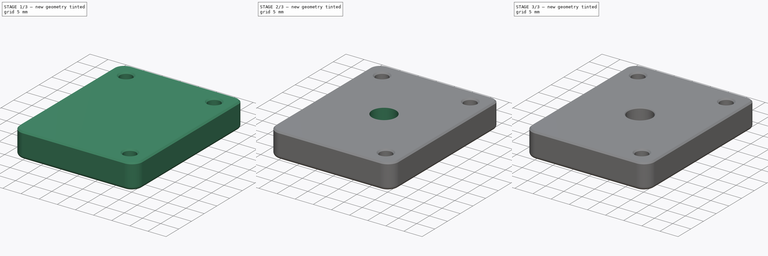
[diagram: build sequence overview — one tinted view per stage of 3, left to right]
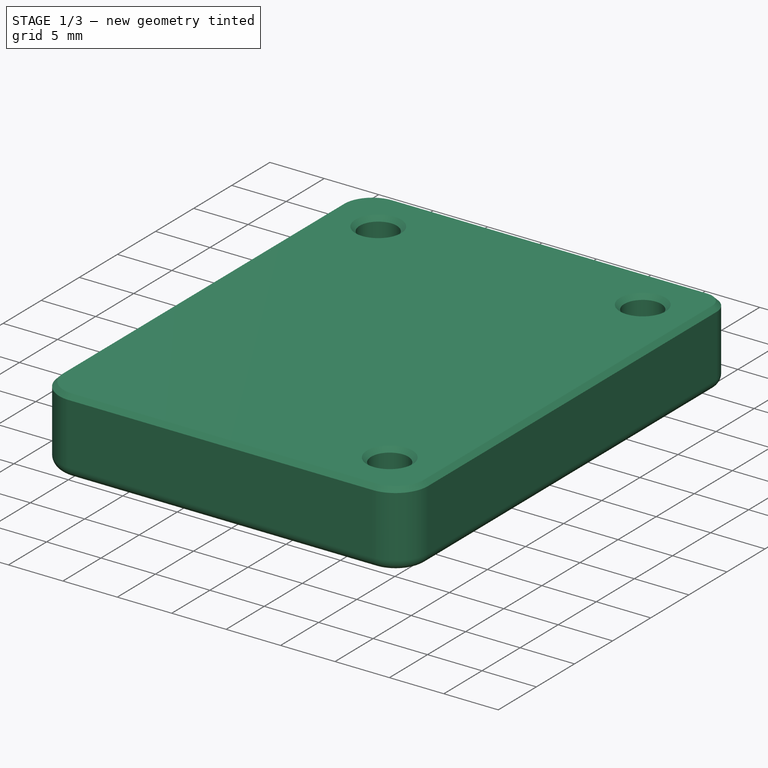
[diagram: stage 1 of 3 — iso view after this stage's code; geometry added in this stage tinted green]
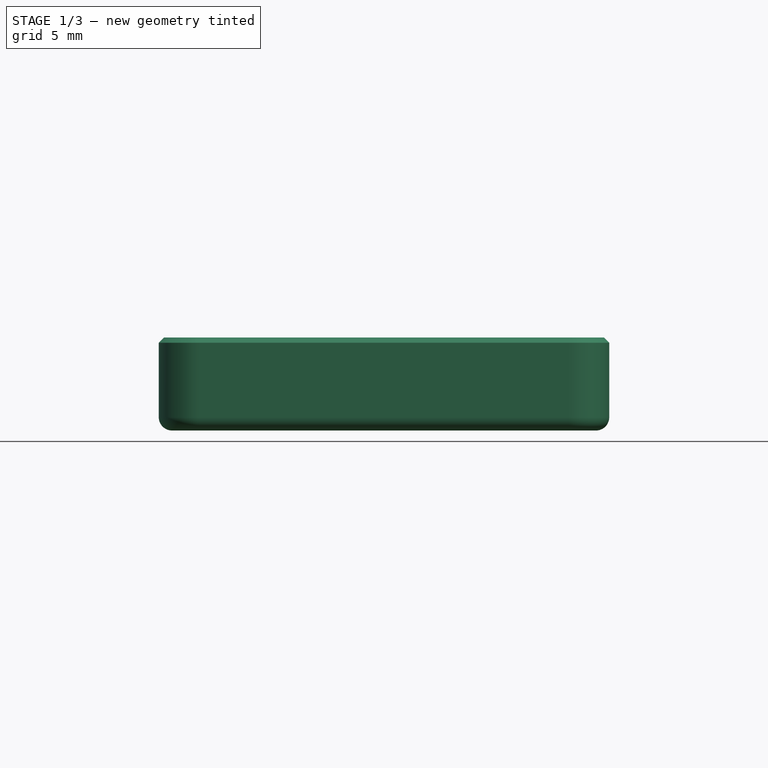
[diagram: stage 1 of 3 — front view after this stage's code; geometry added in this stage tinted green]
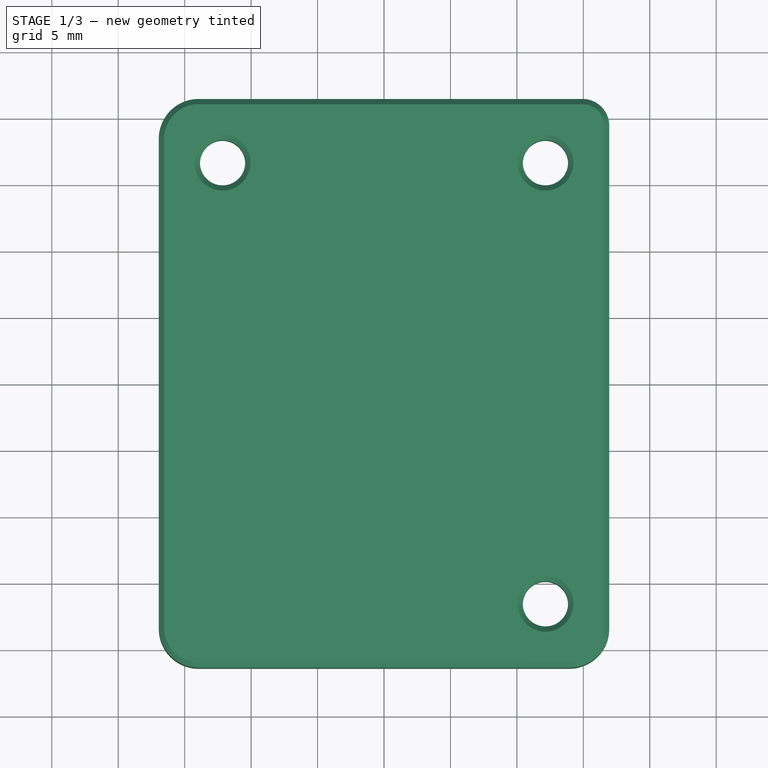
[diagram: stage 1 of 3 — top view after this stage's code; geometry added in this stage tinted green]
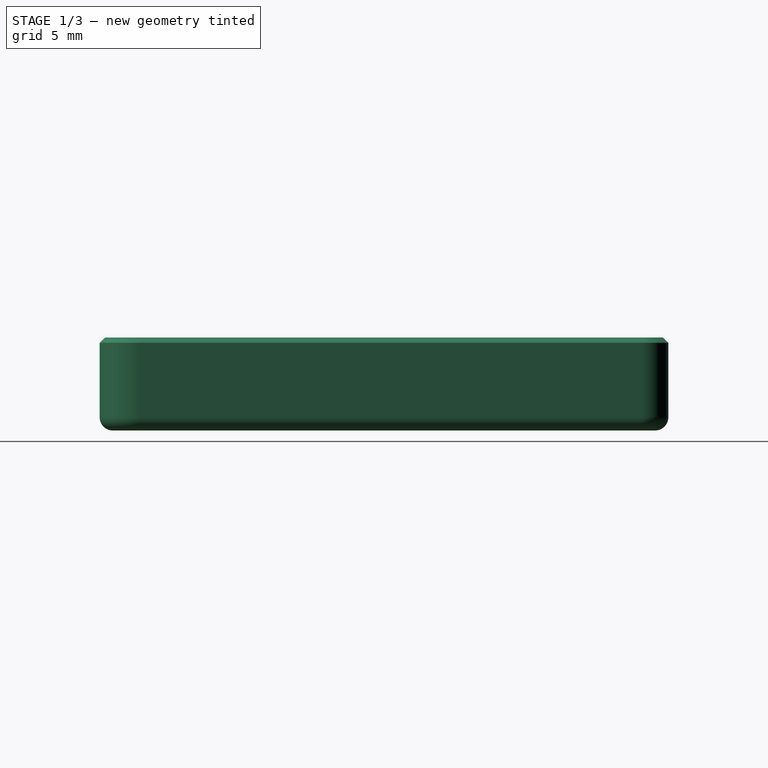
[diagram: stage 1 of 3 — right view after this stage's code; geometry added in this stage tinted green]
FCSTD DOCUMENT  (FreeCAD 0.18R16146 (Git))
Label: foot-mounter
License: Other
LicenseURL: GPL3
objects: Sketcher::SketchObject×2, PartDesign::Chamfer×2, Part::Feature×1, PartDesign::FeatureBase×1, PartDesign::Pad×1, PartDesign::Pocket×1, PartDesign::Body×1
note: 11 computed .brp shape members not serialized (recipe doc carries the construction recipe); baked Part::Feature solids carry a one-line shape summary decoded from their .brp

FEATURE [Part::Feature] Part__Feature1494001  label="SOLID113"
  shape: bbox 34.39 x 43.29 x 7 mm, 47 faces (baked)
FEATURE [PartDesign::FeatureBase] BaseFeature
  BaseFeature = -> Part__Feature1494001
FEATURE [Sketcher::SketchObject] Sketch
  MapMode = 5
  Placement = pos=(0,0,-0.00227542) rot=(1,0,0;3.14159rad)
  Support = -> [BaseFeature]
  sketch-geometry (1):
    g0: Circle CenterX=0 CenterY=0 CenterZ=0 NormalX=0 NormalY=0 NormalZ=1 AngleXU=0 Radius=6
  constraints (1):
    c: PointOnObject(g0,g-1)
FEATURE [PartDesign::Pad] Pad
  BaseFeature = -> BaseFeature
  Length = 7
  Length2 = 100
  Profile = -> Sketch
  Reversed = true
  Type = 0
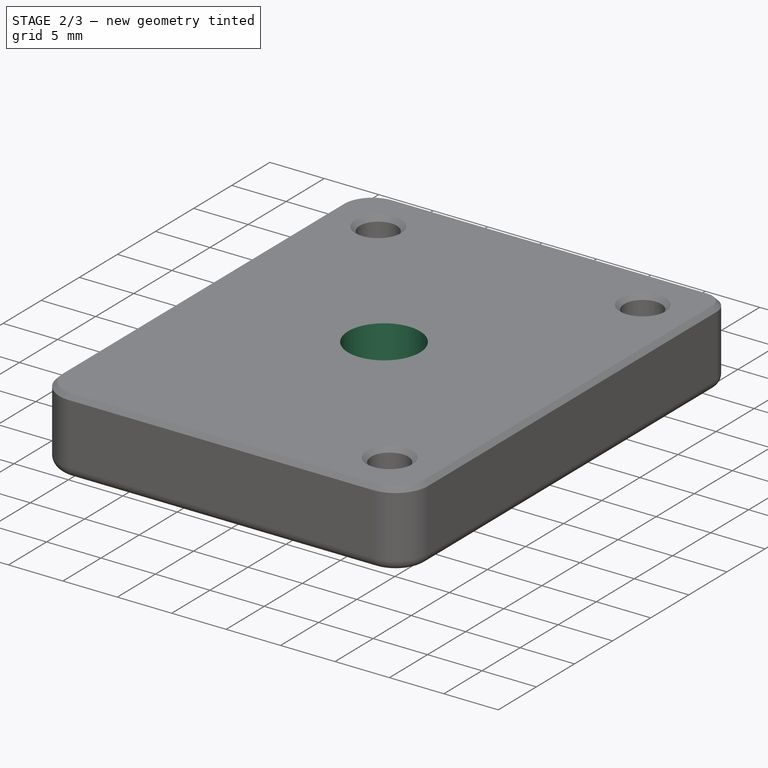
[diagram: stage 2 of 3 — iso view after this stage's code; geometry added in this stage tinted green]
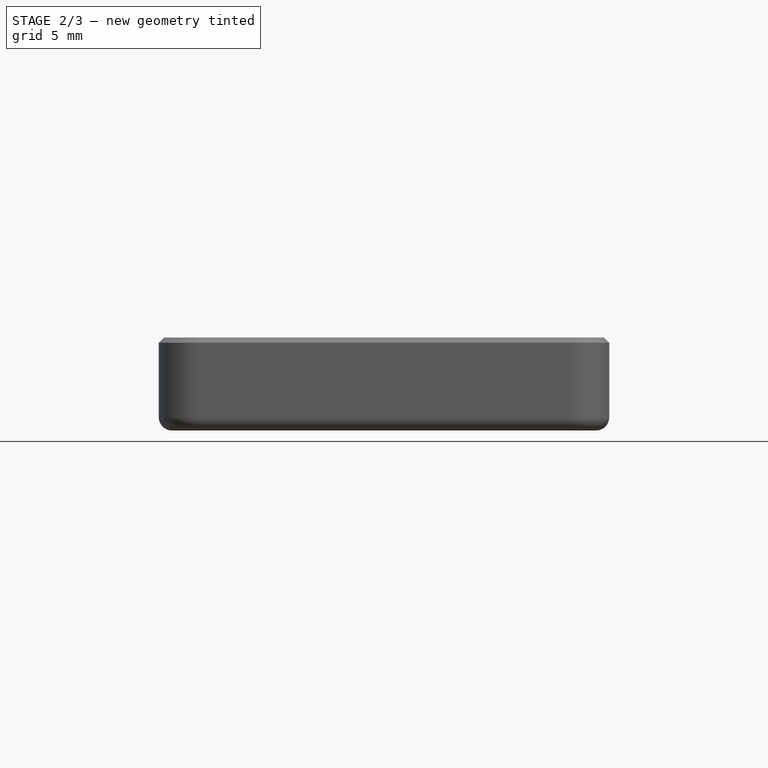
[diagram: stage 2 of 3 — front view after this stage's code; geometry added in this stage tinted green]
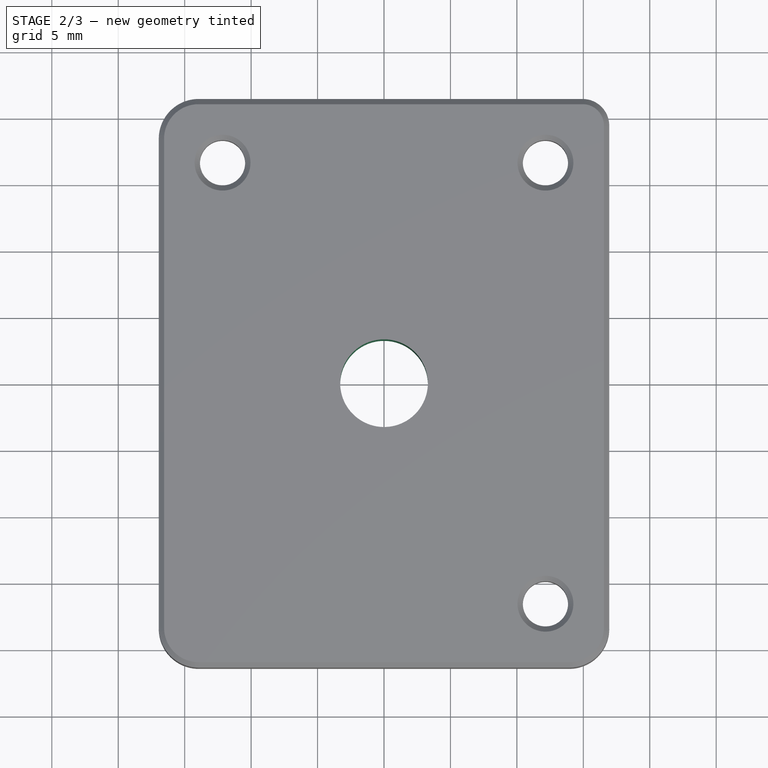
[diagram: stage 2 of 3 — top view after this stage's code; geometry added in this stage tinted green]
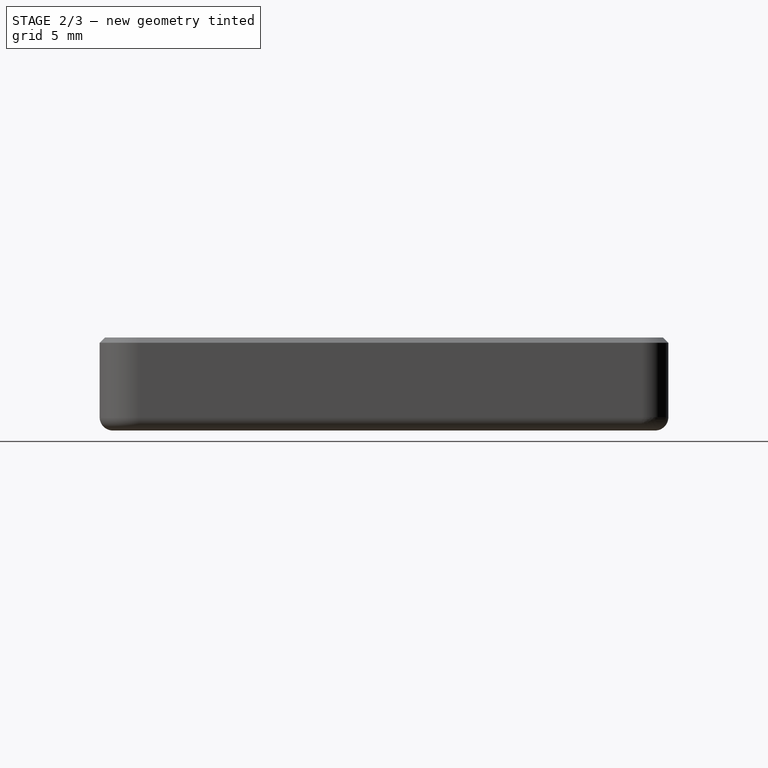
[diagram: stage 2 of 3 — right view after this stage's code; geometry added in this stage tinted green]
FEATURE [Sketcher::SketchObject] Sketch001
  MapMode = 5
  Placement = pos=(0,0,-0.00227542) rot=(1,0,0;3.14159rad)
  Support = -> [Pad]
  sketch-geometry (1):
    g0: Circle CenterX=0 CenterY=0 CenterZ=0 NormalX=0 NormalY=0 NormalZ=1 AngleXU=0 Radius=3.3
  constraints (2):
    c: Coincident(g0,g-1)
    c: Radius(g0) = 3.3
FEATURE [PartDesign::Pocket] Pocket
  BaseFeature = -> Pad
  Length = 0
  Length2 = 100
  Profile = -> Sketch001
  Type = 3
  UpToFace = -> Pad [Face21]
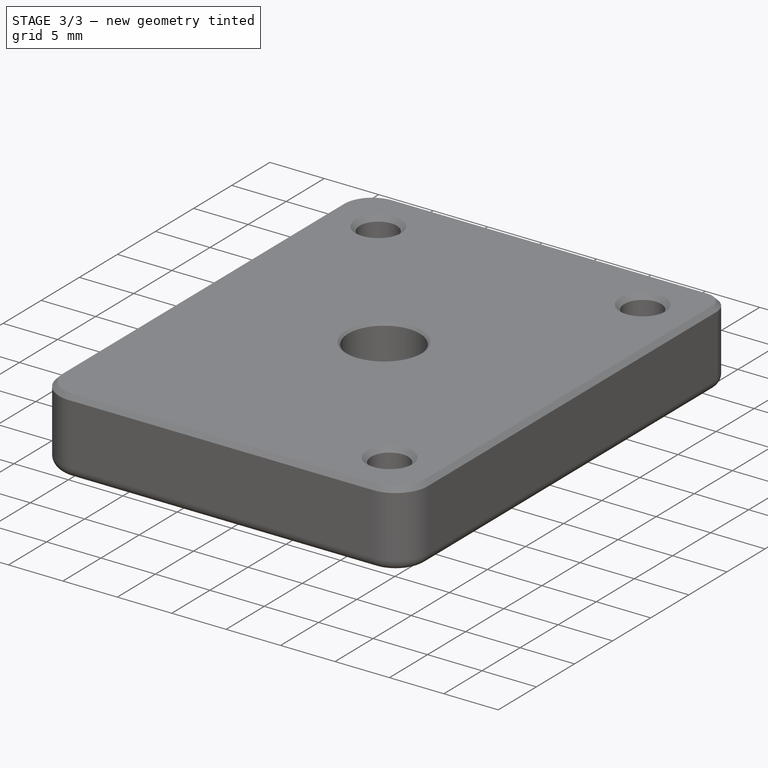
[diagram: stage 3 of 3 — iso view after this stage's code; geometry added in this stage tinted green]
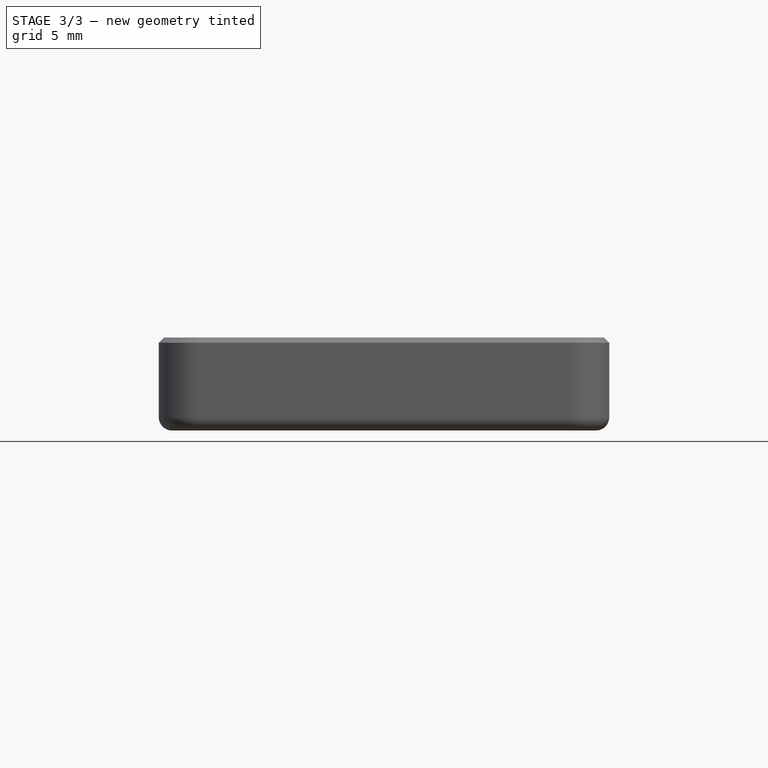
[diagram: stage 3 of 3 — front view after this stage's code; geometry added in this stage tinted green]
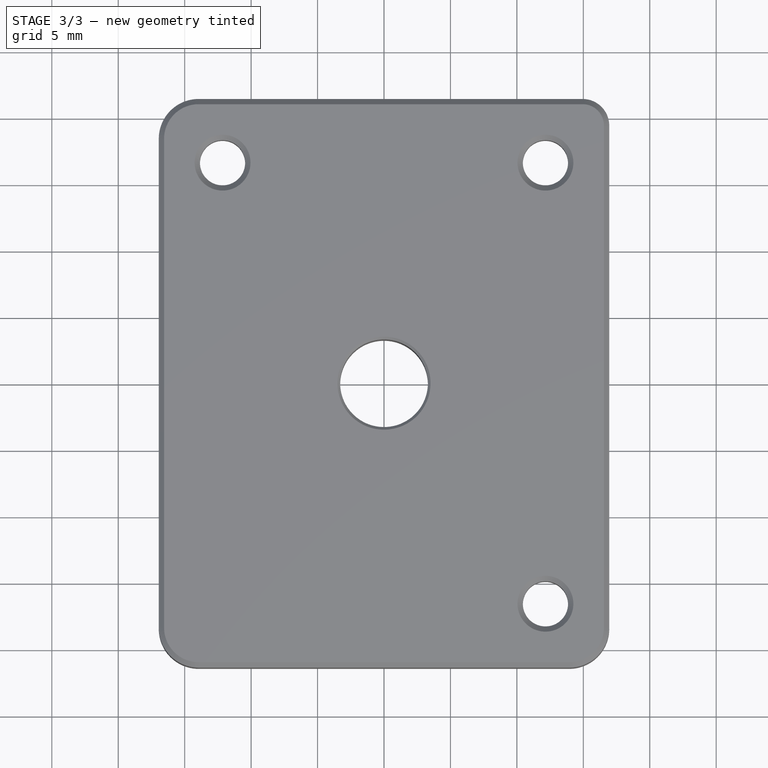
[diagram: stage 3 of 3 — top view after this stage's code; geometry added in this stage tinted green]
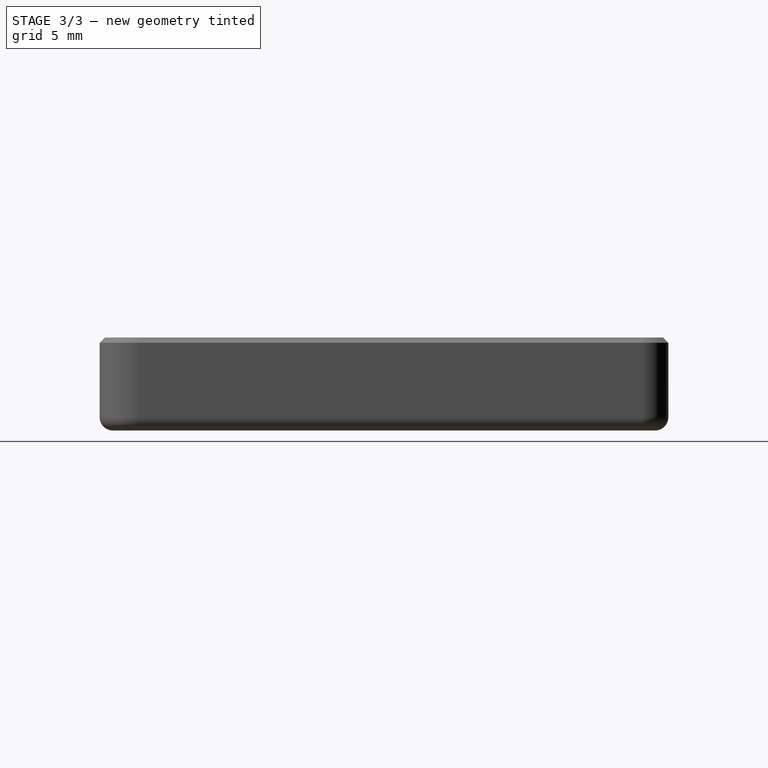
[diagram: stage 3 of 3 — right view after this stage's code; geometry added in this stage tinted green]
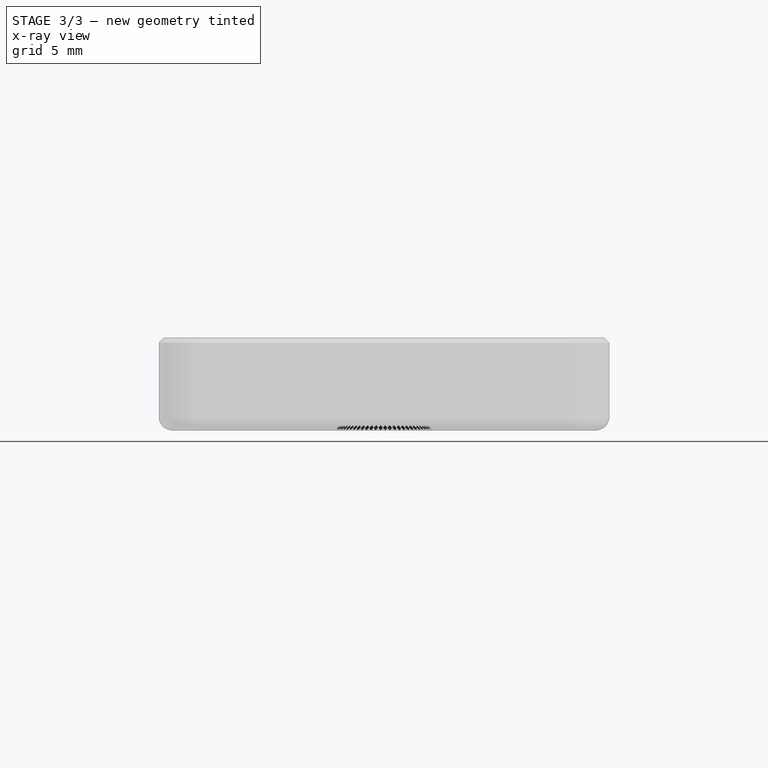
[diagram: stage 3 of 3 — x-ray composite at the front view; earlier geometry ghosted, this stage's added geometry solid]
FEATURE [PartDesign::Chamfer] Chamfer
  Base = -> Pocket [Edge70]
  BaseFeature = -> Pocket
  Size = 0.2
FEATURE [PartDesign::Chamfer] Chamfer001
  Base = -> Chamfer [Edge3]
  BaseFeature = -> Chamfer
  Size = 0.4
FEATURE [PartDesign::Body] Body
  BaseFeature = -> Part__Feature1494001
  Group = -> [BaseFeature,Sketch,Pad,Sketch001,Pocket,Chamfer,Chamfer001]
  Origin = -> Origin
  Tip = -> Chamfer001
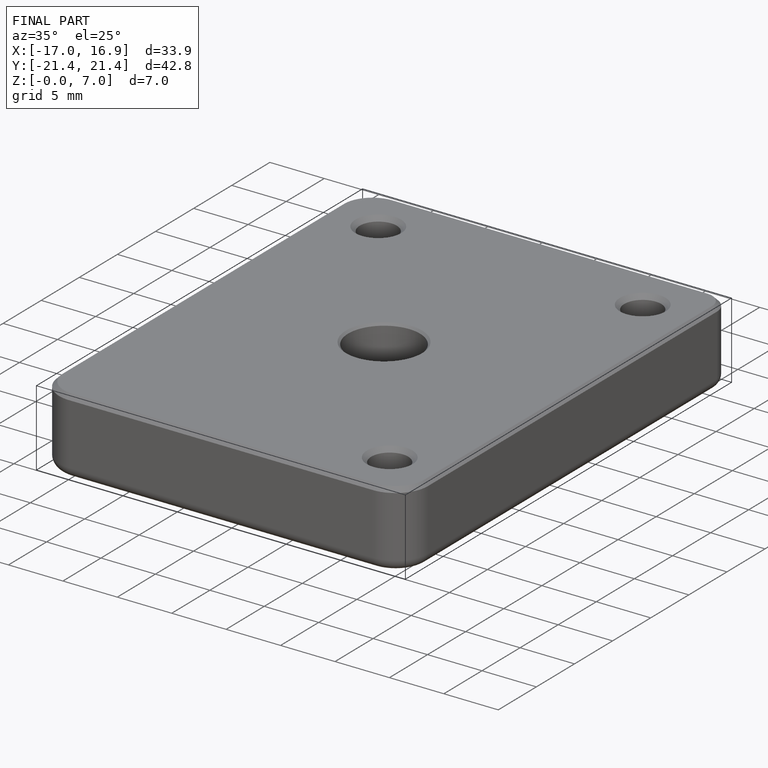
[diagram: finished part — iso view with bounding-box wireframe]
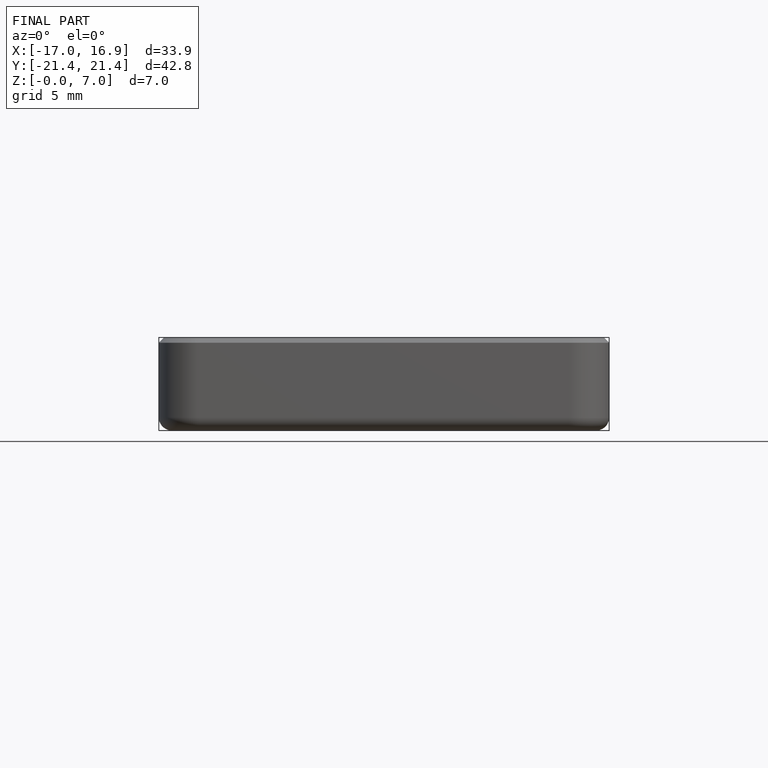
[diagram: finished part — front view with bounding-box wireframe]
